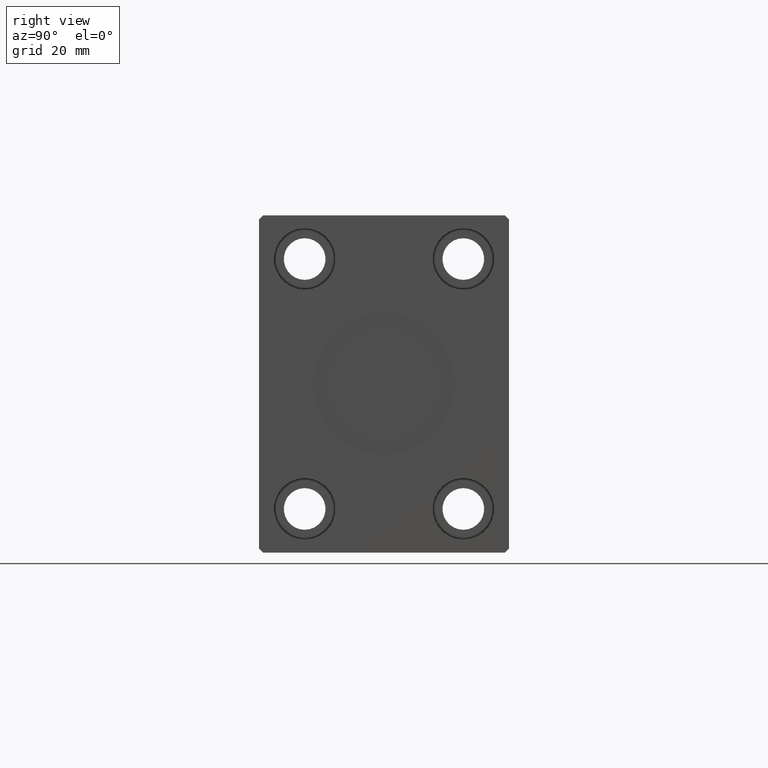
[diagram: clean part render]
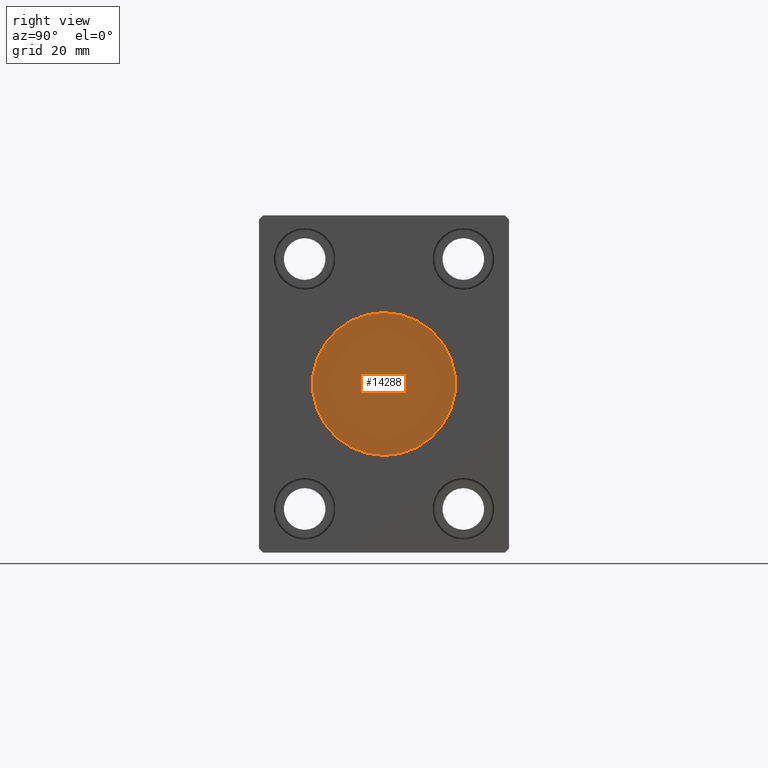
[diagram: same view with one face highlighted and labeled with its STEP entity id]
A machine part, right view. The second image highlights one B-rep face of the part: STEP entity #14288.
In plain terms, the highlighted planar face has unit normal (1, 0, 0).
Its self-contained STEP definition (entity closure, byte-faithful):
#60 = CIRCLE ( 'NONE', #4855, 18.00000000000000000 ) ;
#343 = DIRECTION ( 'NONE',  ( 0.000000000000000000, 0.000000000000000000, -1.000000000000000000 ) ) ;
#4855 = AXIS2_PLACEMENT_3D ( 'NONE', #19545, #16119, #26390 ) ;
#5212 = DIRECTION ( 'NONE',  ( 0.000000000000000000, 0.000000000000000000, -1.000000000000000000 ) ) ;
#5422 = CARTESIAN_POINT ( 'NONE',  ( 150.7999999999999829, 0.000000000000000000, 0.000000000000000000 ) ) ;
#8227 = DIRECTION ( 'NONE',  ( 1.000000000000000000, 0.000000000000000000, 0.000000000000000000 ) ) ;
#10049 = EDGE_LOOP ( 'NONE', ( #20397, #28377 ) ) ;
#10394 = AXIS2_PLACEMENT_3D ( 'NONE', #15157, #13199, #343 ) ;
#11149 = EDGE_CURVE ( 'NONE', #41740, #35042, #60, .T. ) ;
#13199 = DIRECTION ( 'NONE',  ( 1.000000000000000000, 0.000000000000000000, 0.000000000000000000 ) ) ;
#14288 = ADVANCED_FACE ( 'NONE', ( #28013 ), #31439, .T. ) ;
#15157 = CARTESIAN_POINT ( 'NONE',  ( 150.7999999999999829, 0.000000000000000000, 0.000000000000000000 ) ) ;
#16119 = DIRECTION ( 'NONE',  ( 1.000000000000000000, 0.000000000000000000, 0.000000000000000000 ) ) ;
#19545 = CARTESIAN_POINT ( 'NONE',  ( 150.7999999999999829, 0.000000000000000000, 0.000000000000000000 ) ) ;
#20397 = ORIENTED_EDGE ( 'NONE', *, *, #11149, .T. ) ;
#26390 = DIRECTION ( 'NONE',  ( 0.000000000000000000, 0.000000000000000000, -1.000000000000000000 ) ) ;
#28013 = FACE_OUTER_BOUND ( 'NONE', #10049, .T. ) ;
#28377 = ORIENTED_EDGE ( 'NONE', *, *, #36521, .T. ) ;
#31439 = PLANE ( 'NONE',  #10394 ) ;
#35042 = VERTEX_POINT ( 'NONE', #40129 ) ;
#35406 = AXIS2_PLACEMENT_3D ( 'NONE', #5422, #8227, #5212 ) ;
#36521 = EDGE_CURVE ( 'NONE', #35042, #41740, #37481, .T. ) ;
#37481 = CIRCLE ( 'NONE', #35406, 18.00000000000000000 ) ;
#40129 = CARTESIAN_POINT ( 'NONE',  ( 150.7999999999999829, 2.204364238465235428E-15, 18.00000000000000000 ) ) ;
#41740 = VERTEX_POINT ( 'NONE', #42334 ) ;
#42334 = CARTESIAN_POINT ( 'NONE',  ( 150.7999999999999829, 0.000000000000000000, -18.00000000000000000 ) ) ;